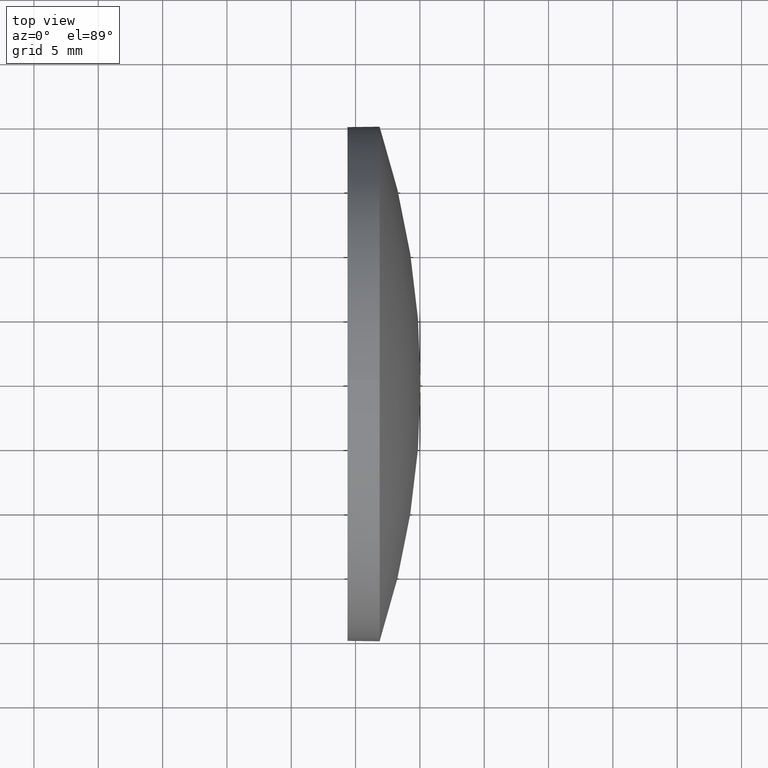
[diagram: clean part render]
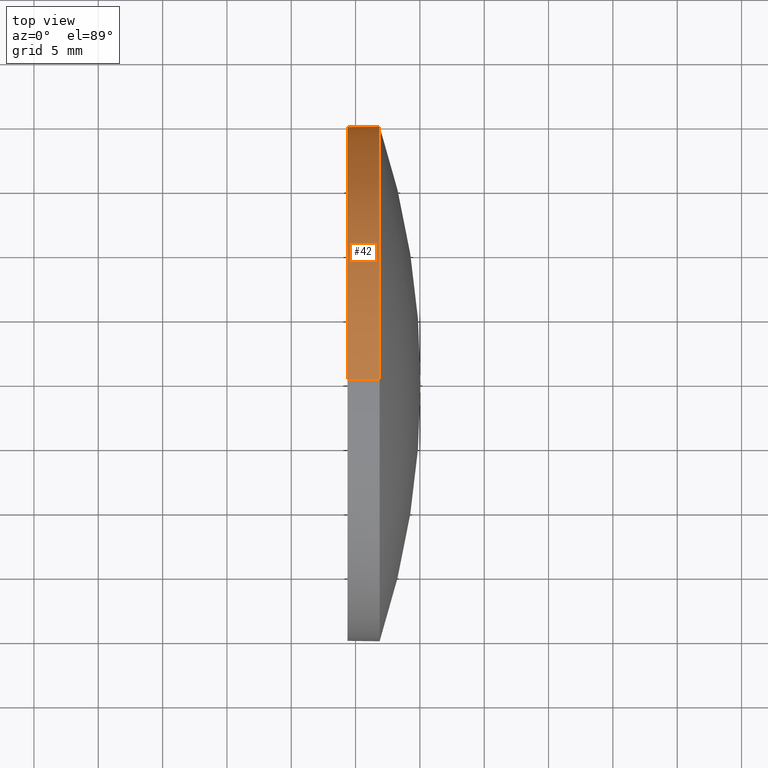
[diagram: same view with one face highlighted and labeled with its STEP entity id]
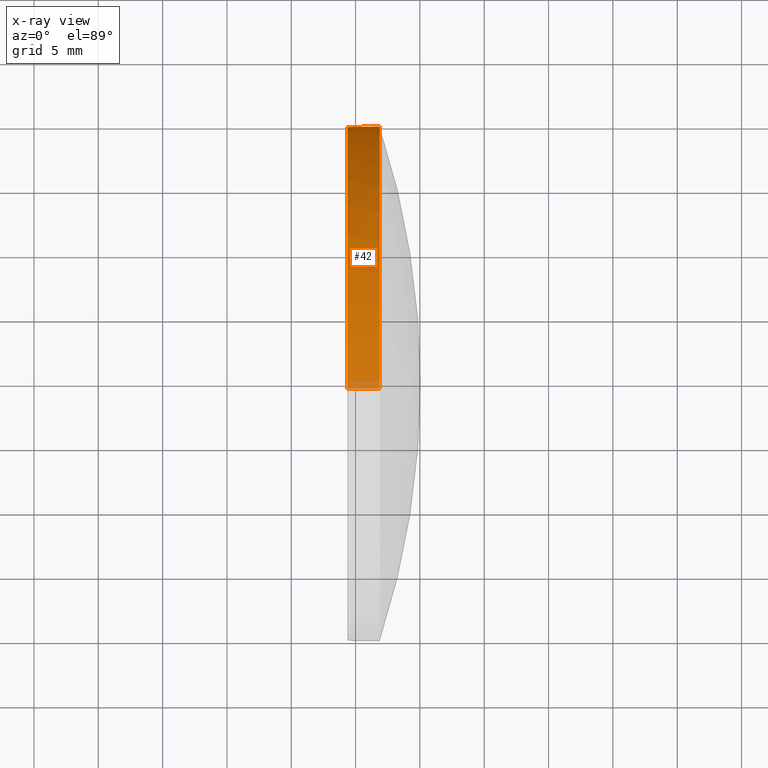
[diagram: x-ray of the same camera — body ghosted, the highlighted face saturated]
A machine part, top view. The second image highlights one B-rep face of the part: STEP entity #42.
The next image is the same camera in x-ray: the body ghosted, the highlighted face saturated — about 3% of this face is hidden behind the body in this view.
In plain terms, the highlighted cylindrical surface (partial cylindrical patch) has radius 20 mm, axis along (-1, -0, -0).
Its self-contained STEP definition (entity closure, byte-faithful):
#3 = VERTEX_POINT ( 'NONE', #56 ) ;
#5 = VECTOR ( 'NONE', #137, 1000.000000000000000 ) ;
#6 = VERTEX_POINT ( 'NONE', #153 ) ;
#8 = ORIENTED_EDGE ( 'NONE', *, *, #154, .T. ) ;
#10 = CARTESIAN_POINT ( 'NONE',  ( 515.4038089794889900, 34.81724702676228800, 0.0000000000000000000 ) ) ;
#13 = ORIENTED_EDGE ( 'NONE', *, *, #51, .T. ) ;
#18 = VECTOR ( 'NONE', #104, 1000.000000000000000 ) ;
#20 = EDGE_CURVE ( 'NONE', #164, #6, #21, .T. ) ;
#21 = CIRCLE ( 'NONE', #103, 19.99999999999999600 ) ;
#24 = CARTESIAN_POINT ( 'NONE',  ( 519.3687625904749400, 34.81724702676228800, 0.0000000000000000000 ) ) ;
#26 = DIRECTION ( 'NONE',  ( 0.0000000000000000000, 0.0000000000000000000, 1.000000000000000000 ) ) ;
#35 = AXIS2_PLACEMENT_3D ( 'NONE', #36, #179, #78 ) ;
#36 = CARTESIAN_POINT ( 'NONE',  ( 521.8687625904749400, 34.81724702676228800, 0.0000000000000000000 ) ) ;
#42 = ADVANCED_FACE ( 'NONE', ( #167 ), #151, .T. ) ;
#43 = LINE ( 'NONE', #91, #5 ) ;
#46 = EDGE_CURVE ( 'NONE', #169, #164, #158, .T. ) ;
#49 = CARTESIAN_POINT ( 'NONE',  ( 521.8687625904749400, 34.81724702676228800, 19.99999999999999600 ) ) ;
#51 = EDGE_CURVE ( 'NONE', #3, #132, #165, .T. ) ;
#52 = ORIENTED_EDGE ( 'NONE', *, *, #74, .T. ) ;
#53 = CARTESIAN_POINT ( 'NONE',  ( 521.8687625904749400, 34.81724702676228800, 0.0000000000000000000 ) ) ;
#56 = CARTESIAN_POINT ( 'NONE',  ( 521.8687625904749400, 54.81724702676223900, 0.0000000000000000000 ) ) ;
#74 = EDGE_CURVE ( 'NONE', #169, #3, #86, .T. ) ;
#78 = DIRECTION ( 'NONE',  ( 0.0000000000000000000, 0.0000000000000000000, 1.000000000000000000 ) ) ;
#80 = DIRECTION ( 'NONE',  ( -1.000000000000000000, -0.0000000000000000000, -0.0000000000000000000 ) ) ;
#81 = DIRECTION ( 'NONE',  ( 0.0000000000000000000, 0.0000000000000000000, 1.000000000000000000 ) ) ;
#84 = AXIS2_PLACEMENT_3D ( 'NONE', #10, #140, #26 ) ;
#86 = CIRCLE ( 'NONE', #35, 19.99999999999999600 ) ;
#88 = EDGE_LOOP ( 'NONE', ( #13, #8, #122, #109, #52 ) ) ;
#91 = CARTESIAN_POINT ( 'NONE',  ( 515.4038089794889900, 34.81724702676228800, -19.99999999999999600 ) ) ;
#101 = AXIS2_PLACEMENT_3D ( 'NONE', #53, #124, #81 ) ;
#103 = AXIS2_PLACEMENT_3D ( 'NONE', #24, #80, #138 ) ;
#104 = DIRECTION ( 'NONE',  ( -1.000000000000000000, -0.0000000000000000000, -0.0000000000000000000 ) ) ;
#109 = ORIENTED_EDGE ( 'NONE', *, *, #46, .F. ) ;
#122 = ORIENTED_EDGE ( 'NONE', *, *, #20, .F. ) ;
#124 = DIRECTION ( 'NONE',  ( -1.000000000000000000, -0.0000000000000000000, -0.0000000000000000000 ) ) ;
#132 = VERTEX_POINT ( 'NONE', #184 ) ;
#137 = DIRECTION ( 'NONE',  ( -1.000000000000000000, -0.0000000000000000000, -0.0000000000000000000 ) ) ;
#138 = DIRECTION ( 'NONE',  ( 0.0000000000000000000, 0.0000000000000000000, 1.000000000000000000 ) ) ;
#140 = DIRECTION ( 'NONE',  ( -1.000000000000000000, -0.0000000000000000000, -0.0000000000000000000 ) ) ;
#148 = CARTESIAN_POINT ( 'NONE',  ( 519.3687625904749400, 34.81724702676228800, 19.99999999999999600 ) ) ;
#151 = CYLINDRICAL_SURFACE ( 'NONE', #84, 19.99999999999999600 ) ;
#153 = CARTESIAN_POINT ( 'NONE',  ( 519.3687625904749400, 34.81724702676228800, -19.99999999999999600 ) ) ;
#154 = EDGE_CURVE ( 'NONE', #132, #6, #43, .T. ) ;
#158 = LINE ( 'NONE', #168, #18 ) ;
#164 = VERTEX_POINT ( 'NONE', #148 ) ;
#165 = CIRCLE ( 'NONE', #101, 19.99999999999999600 ) ;
#167 = FACE_OUTER_BOUND ( 'NONE', #88, .T. ) ;
#168 = CARTESIAN_POINT ( 'NONE',  ( 515.4038089794889900, 34.81724702676228800, 19.99999999999999600 ) ) ;
#169 = VERTEX_POINT ( 'NONE', #49 ) ;
#179 = DIRECTION ( 'NONE',  ( -1.000000000000000000, -0.0000000000000000000, -0.0000000000000000000 ) ) ;
#184 = CARTESIAN_POINT ( 'NONE',  ( 521.8687625904749400, 34.81724702676228800, -19.99999999999999600 ) ) ;